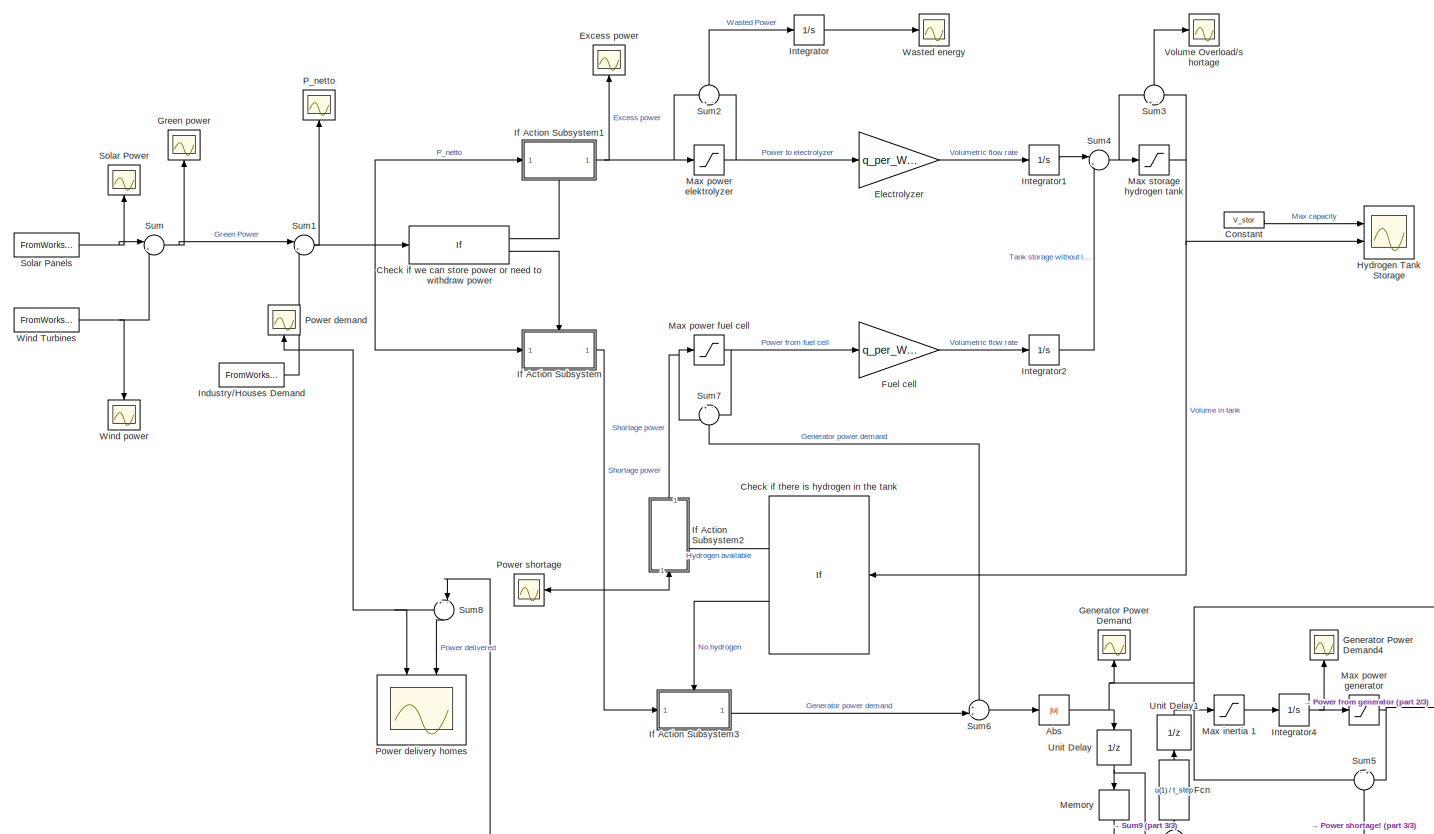
[diagram: root canvas - part 1/3, most of the canvas]
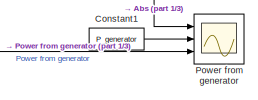
[diagram: root canvas - part 2/3, bottom right region]
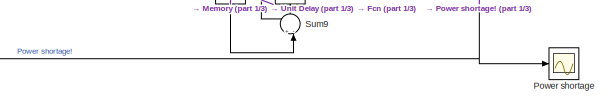
[diagram: root canvas - part 3/3, bottom right region]
MODEL slx_9084484f631f
KIND model
CONFIG AbsTol = auto
CONFIG EnableMultiTasking = off
CONFIG FixedStep = auto
CONFIG MaxStep = auto
CONFIG MinStep = auto
CONFIG RelTol = 1e-3
CONFIG SampleTimeConstraint = Unconstrained
CONFIG Solver = VariableStepAuto
CONFIG SolverName = VariableStepAuto
CONFIG StartTime = 0.0
CONFIG StopTime = T_sim
BLOCK [Abs] Abs
  SaturateOnIntegerOverflow = off
BLOCK [If] Check if there is hydrogen in the tank 
  Ports = [1, 2]
BLOCK [If] Check if we can store power or need to withdraw power
  Ports = [1, 2]
BLOCK [Constant] Constant
  Value = V_stor
BLOCK [Constant] Constant1
  Value = P_generator
BLOCK [Gain] Electrolyzer
  Gain = q_per_Watt
  OutDataTypeStr = Inherit: Inherit via internal rule
  ParamDataTypeStr = Inherit: Inherit via internal rule
  SaturateOnIntegerOverflow = off
BLOCK [Scope] Excess power
  Floating = off
  NumInputPorts = 1
  Ports = [1]
  ScopeSpecificationString = Simulink.scopes.TimeScopeBlockCfg('CurrentConfiguration', extmgr.ConfigurationSet(extmgr.Configuration('Core','General UI',true),extmgr.Configuration('Core','Source UI',true),extmgr.Configuration('Sources','WiredSimulink',true,'DataLoggingVariableName','ScopeData1'),extmgr.Configuration('Visuals','Time Domain',true,'SerializedDisplays',{struct('MinYLimReal','-0.3125','MaxYLimReal','2.8125','YLabel...<+1398ch>
BLOCK [Fcn] Fcn
  Expr = u(1) / t_step
BLOCK [Gain] Fuel cell
  Gain = q_per_Watt
  OutDataTypeStr = Inherit: Inherit via internal rule
  ParamDataTypeStr = Inherit: Inherit via internal rule
  SaturateOnIntegerOverflow = off
BLOCK [Scope] Generator Power Demand
  Floating = off
  NumInputPorts = 1
  Ports = [1]
  ScopeSpecificationString = Simulink.scopes.TimeScopeBlockCfg('CurrentConfiguration', extmgr.ConfigurationSet(extmgr.Configuration('Core','General UI',true),extmgr.Configuration('Core','Source UI',true),extmgr.Configuration('Sources','WiredSimulink',true,'DataLoggingVariableName','ScopeData7'),extmgr.Configuration('Visuals','Time Domain',true,'SerializedDisplays',{struct('MinYLimReal','-0.31958','MaxYLimReal','2.87677','YLab...<+1393ch>
BLOCK [Scope] Generator Power Demand4
  Floating = off
  NumInputPorts = 1
  Ports = [1]
  ScopeSpecificationString = Simulink.scopes.TimeScopeBlockCfg('CurrentConfiguration', extmgr.ConfigurationSet(extmgr.Configuration('Core','General UI',true),extmgr.Configuration('Core','Source UI',true),extmgr.Configuration('Sources','WiredSimulink',true,'DataLoggingVariableName','ScopeData6'),extmgr.Configuration('Visuals','Time Domain',true,'SerializedDisplays',{struct('MinYLimReal','-3.65243','MaxYLimReal','2.67404','YLab...<+1451ch>
BLOCK [Scope] Green power
  Floating = off
  NumInputPorts = 1
  Ports = [1]
  ScopeSpecificationString = Simulink.scopes.TimeScopeBlockCfg('CurrentConfiguration', extmgr.ConfigurationSet(extmgr.Configuration('Core','General UI',true),extmgr.Configuration('Core','Source UI',true),extmgr.Configuration('Sources','WiredSimulink',true,'DataLoggingVariableName','ScopeData6'),extmgr.Configuration('Visuals','Time Domain',true,'SerializedDisplays',{struct('MinYLimReal','2.54492','MaxYLimReal','6.93945','YLabe...<+1368ch>
BLOCK [Scope] Hydrogen Tank Storage
  Floating = off
  NumInputPorts = 2
  Ports = [2]
  ScopeSpecificationString = Simulink.scopes.TimeScopeBlockCfg('CurrentConfiguration', extmgr.ConfigurationSet(extmgr.Configuration('Core','General UI',true),extmgr.Configuration('Core','Source UI',true),extmgr.Configuration('Sources','WiredSimulink',true,'DataLoggingVariableName','ScopeData1'),extmgr.Configuration('Visuals','Time Domain',true,'SerializedDisplays',{struct('MinYLimReal','-12.5','MaxYLimReal','112.5','YLabelRea...<+1374ch>
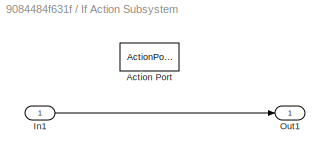
BLOCK [SubSystem] If Action Subsystem
  Ports = [1, 1, 0, 0, 0, 0, 0, 1]
  RequestExecContextInheritance = off
  TreatAsAtomicUnit = on
BLOCK [ActionPort] If Action Subsystem/Action Port
  ActionType = else
BLOCK [Inport] If Action Subsystem/In1
  IconDisplay = Port number
BLOCK [Outport] If Action Subsystem/Out1
  IconDisplay = Port number
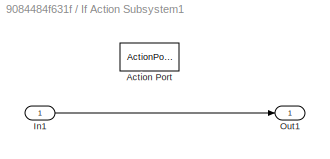
BLOCK [SubSystem] If Action Subsystem1
  Ports = [1, 1, 0, 0, 0, 0, 0, 1]
  RequestExecContextInheritance = off
  TreatAsAtomicUnit = on
BLOCK [ActionPort] If Action Subsystem1/Action Port
  ActionType = then
BLOCK [Inport] If Action Subsystem1/In1
  IconDisplay = Port number
BLOCK [Outport] If Action Subsystem1/Out1
  IconDisplay = Port number
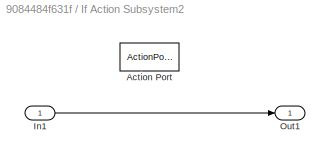
BLOCK [SubSystem] If Action Subsystem2
  Ports = [1, 1, 0, 0, 0, 0, 0, 1]
  RequestExecContextInheritance = off
  TreatAsAtomicUnit = on
BLOCK [ActionPort] If Action Subsystem2/Action Port
  ActionType = then
BLOCK [Inport] If Action Subsystem2/In1
  IconDisplay = Port number
BLOCK [Outport] If Action Subsystem2/Out1
  IconDisplay = Port number
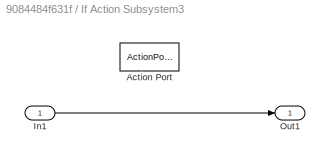
BLOCK [SubSystem] If Action Subsystem3
  Ports = [1, 1, 0, 0, 0, 0, 0, 1]
  RequestExecContextInheritance = off
  TreatAsAtomicUnit = on
BLOCK [ActionPort] If Action Subsystem3/Action Port
  ActionType = else
BLOCK [Inport] If Action Subsystem3/In1
  IconDisplay = Port number
BLOCK [Outport] If Action Subsystem3/Out1
  IconDisplay = Port number
BLOCK [FromWorkspace] Industry//Houses Demand
  Interpolate = off
  OutputAfterFinalValue = Setting to zero
  SampleTime = t_step
  VariableName = house
  ZeroCross = on
BLOCK [Integrator] Integrator
  Ports = [1, 1]
BLOCK [Integrator] Integrator1
  Ports = [1, 1]
BLOCK [Integrator] Integrator2
  Ports = [1, 1]
BLOCK [Integrator] Integrator4
  InitialCondition = 0.5
  Ports = [1, 1]
BLOCK [Saturate] Max inertia 1
  InputPortMap = u0
  LowerLimit = -1 * P_gen_inertia
  Ports = [1, 1]
  UpperLimit = P_gen_inertia
BLOCK [Saturate] Max power elektrolyzer
  InputPortMap = u0
  LowerLimit = 0
  Ports = [1, 1]
  UpperLimit = P_elektrolyzer
BLOCK [Saturate] Max power fuel cell
  InputPortMap = u0
  LowerLimit = -1 * P_fuelcell
  Ports = [1, 1]
  UpperLimit = 0
BLOCK [Saturate] Max power generator
  InputPortMap = u0
  LowerLimit = 0
  Ports = [1, 1]
  UpperLimit = P_generator
BLOCK [Saturate] Max storage hydrogen tank
  InputPortMap = u0
  LowerLimit = 0
  Ports = [1, 1]
  UpperLimit = V_stor
BLOCK [Memory] Memory
  InitialCondition = 0.5
BLOCK [Scope] P_netto
  Floating = off
  NumInputPorts = 1
  Ports = [1]
  ScopeSpecificationString = Simulink.scopes.TimeScopeBlockCfg('CurrentConfiguration', extmgr.ConfigurationSet(extmgr.Configuration('Core','General UI',true),extmgr.Configuration('Core','Source UI',true),extmgr.Configuration('Sources','WiredSimulink',true,'DataLoggingVariableName','ScopeData8'),extmgr.Configuration('Visuals','Time Domain',true,'SerializedDisplays',{struct('MinYLimReal','-4.53921','MaxYLimReal','3.28213','YLab...<+1366ch>
BLOCK [Scope] Power delivery homes
  Floating = off
  NumInputPorts = 2
  Ports = [2]
  ScopeSpecificationString = Simulink.scopes.TimeScopeBlockCfg('CurrentConfiguration', extmgr.ConfigurationSet(extmgr.Configuration('Core','General UI',true),extmgr.Configuration('Core','Source UI',true),extmgr.Configuration('Sources','WiredSimulink',true,'DataLoggingVariableName','ScopeData5'),extmgr.Configuration('Visuals','Time Domain',true,'SerializedDisplays',{struct('MinYLimReal','1.375','MaxYLimReal','7.625','YLabelRea...<+1382ch>
BLOCK [Scope] Power demand
  Floating = off
  NumInputPorts = 1
  Ports = [1]
  ScopeSpecificationString = Simulink.scopes.TimeScopeBlockCfg('CurrentConfiguration', extmgr.ConfigurationSet(extmgr.Configuration('Core','General UI',true),extmgr.Configuration('Core','Source UI',true),extmgr.Configuration('Sources','WiredSimulink',true,'DataLoggingVariableName','ScopeData1'),extmgr.Configuration('Visuals','Time Domain',true,'SerializedDisplays',{struct('MinYLimReal','1.375','MaxYLimReal','7.625','YLabelRea...<+1389ch>
BLOCK [Scope] Power from generator
  Floating = off
  NumInputPorts = 3
  Ports = [3]
  ScopeSpecificationString = Simulink.scopes.TimeScopeBlockCfg('CurrentConfiguration', extmgr.ConfigurationSet(extmgr.Configuration('Core','General UI',true),extmgr.Configuration('Core','Source UI',true),extmgr.Configuration('Sources','WiredSimulink',true,'DataLoggingVariableName','ScopeData3'),extmgr.Configuration('Visuals','Time Domain',true,'SerializedDisplays',{struct('MinYLimReal','-0.87494','MaxYLimReal','7.87499','YLab...<+1397ch>
BLOCK [Scope] Power shortage
  Floating = off
  NumInputPorts = 1
  Ports = [1]
  ScopeSpecificationString = Simulink.scopes.TimeScopeBlockCfg('CurrentConfiguration', extmgr.ConfigurationSet(extmgr.Configuration('Core','General UI',true),extmgr.Configuration('Core','Source UI',true),extmgr.Configuration('Sources','WiredSimulink',true,'DataLoggingVariableName','ScopeData2'),extmgr.Configuration('Visuals','Time Domain',true,'SerializedDisplays',{struct('MinYLimReal','-4.22671','MaxYLimReal','0.46963','YLab...<+1404ch>
BLOCK [Scope] Power shortage 
  Floating = off
  NumInputPorts = 1
  Ports = [1]
  ScopeSpecificationString = Simulink.scopes.TimeScopeBlockCfg('CurrentConfiguration', extmgr.ConfigurationSet(extmgr.Configuration('Core','General UI',true),extmgr.Configuration('Core','Source UI',true),extmgr.Configuration('Sources','WiredSimulink',true,'DataLoggingVariableName','ScopeData4'),extmgr.Configuration('Visuals','Time Domain',true,'SerializedDisplays',{struct('MinYLimReal','-1.34443','MaxYLimReal','0.23339','YLab...<+1374ch>
BLOCK [FromWorkspace] Solar Panels
  Interpolate = off
  OutputAfterFinalValue = Setting to zero
  SampleTime = t_step
  VariableName = solar
  ZeroCross = on
BLOCK [Scope] Solar Power
  Floating = off
  NumInputPorts = 1
  Ports = [1]
  ScopeSpecificationString = Simulink.scopes.TimeScopeBlockCfg('CurrentConfiguration', extmgr.ConfigurationSet(extmgr.Configuration('Core','General UI',true),extmgr.Configuration('Core','Source UI',true),extmgr.Configuration('Sources','WiredSimulink',true,'DataLoggingVariableName','ScopeData2'),extmgr.Configuration('Visuals','Time Domain',true,'SerializedDisplays',{struct('MinYLimReal','-0.5','MaxYLimReal','4.5','YLabelReal',...<+1373ch>
BLOCK [Sum] Sum
  IconShape = round
  InputSameDT = off
  Inputs = |++
  OutDataTypeStr = Inherit: Inherit via internal rule
  Ports = [2, 1]
  SaturateOnIntegerOverflow = off
BLOCK [Sum] Sum1
  IconShape = round
  InputSameDT = off
  Inputs = |+-
  OutDataTypeStr = Inherit: Inherit via internal rule
  Ports = [2, 1]
  SaturateOnIntegerOverflow = off
BLOCK [Sum] Sum2
  IconShape = round
  InputSameDT = off
  Inputs = +-
  OutDataTypeStr = Inherit: Inherit via internal rule
  Ports = [2, 1]
  SaturateOnIntegerOverflow = off
BLOCK [Sum] Sum3
  IconShape = round
  InputSameDT = off
  Inputs = +-
  OutDataTypeStr = Inherit: Inherit via internal rule
  Ports = [2, 1]
  SaturateOnIntegerOverflow = off
BLOCK [Sum] Sum4
  IconShape = round
  InputSameDT = off
  Inputs = |++
  OutDataTypeStr = Inherit: Inherit via internal rule
  Ports = [2, 1]
  SaturateOnIntegerOverflow = off
BLOCK [Sum] Sum5
  IconShape = round
  InputSameDT = off
  Inputs = -+
  OutDataTypeStr = Inherit: Inherit via internal rule
  Ports = [2, 1]
  SaturateOnIntegerOverflow = off
BLOCK [Sum] Sum6
  IconShape = round
  InputSameDT = off
  Inputs = ++|
  OutDataTypeStr = Inherit: Inherit via internal rule
  Ports = [2, 1]
  SaturateOnIntegerOverflow = off
BLOCK [Sum] Sum7
  IconShape = round
  InputSameDT = off
  Inputs = +-
  OutDataTypeStr = Inherit: Inherit via internal rule
  Ports = [2, 1]
  SaturateOnIntegerOverflow = off
BLOCK [Sum] Sum8
  IconShape = round
  InputSameDT = off
  Inputs = +-|
  OutDataTypeStr = Inherit: Inherit via internal rule
  Ports = [2, 1]
  SaturateOnIntegerOverflow = off
BLOCK [Sum] Sum9
  IconShape = round
  InputSameDT = off
  Inputs = +-|
  OutDataTypeStr = Inherit: Inherit via internal rule
  Ports = [2, 1]
  SaturateOnIntegerOverflow = off
BLOCK [UnitDelay] Unit Delay
  InitialCondition = 0.5
  InputProcessing = Elements as channels (sample based)
  SampleTime = t_step
BLOCK [UnitDelay] Unit Delay1
  InputProcessing = Elements as channels (sample based)
  SampleTime = t_step
BLOCK [Scope] Volume Overload//shortage
  Floating = off
  NumInputPorts = 1
  Ports = [1]
  ScopeSpecificationString = Simulink.scopes.TimeScopeBlockCfg('CurrentConfiguration', extmgr.ConfigurationSet(extmgr.Configuration('Core','General UI',true),extmgr.Configuration('Core','Source UI',true),extmgr.Configuration('Sources','WiredSimulink',true,'DataLoggingVariableName','ScopeData2'),extmgr.Configuration('Visuals','Time Domain',true,'SerializedDisplays',{struct('MinYLimReal','-1.00000','MaxYLimReal','1.00000','YLab...<+1363ch>
BLOCK [Scope] Wasted energy
  Floating = off
  NumInputPorts = 1
  Ports = [1]
  ScopeSpecificationString = Simulink.scopes.TimeScopeBlockCfg('CurrentConfiguration', extmgr.ConfigurationSet(extmgr.Configuration('Core','General UI',true),extmgr.Configuration('Core','Source UI',true),extmgr.Configuration('Sources','WiredSimulink',true),extmgr.Configuration('Visuals','Time Domain',true,'SerializedDisplays',{struct('MinYLimReal','-1.00000','MaxYLimReal','1.00000','YLabelReal','','MinYLimMag','0.00000','MaxY...<+1330ch>
BLOCK [FromWorkspace] Wind Turbines
  Interpolate = off
  OutputAfterFinalValue = Setting to zero
  SampleTime = t_step
  VariableName = wind
  ZeroCross = on
BLOCK [Scope] Wind power
  Floating = off
  NumInputPorts = 1
  Ports = [1]
  ScopeSpecificationString = Simulink.scopes.TimeScopeBlockCfg('CurrentConfiguration', extmgr.ConfigurationSet(extmgr.Configuration('Core','General UI',true),extmgr.Configuration('Core','Source UI',true),extmgr.Configuration('Sources','WiredSimulink',true,'DataLoggingVariableName','ScopeData1'),extmgr.Configuration('Visuals','Time Domain',true,'SerializedDisplays',{struct('MinYLimReal','0','MaxYLimReal','3.625','YLabelReal','...<+1508ch>
NET Abs:1 -> Generator Power Demand:1, Power from generator:1, Sum5:1, Unit Delay:1
LINE Check if there is hydrogen in the tank :1 -> If Action Subsystem2:ifaction
LINE Check if there is hydrogen in the tank :2 -> If Action Subsystem3:ifaction
LINE Check if we can store power or need to withdraw power:1 -> If Action Subsystem1:ifaction
LINE Check if we can store power or need to withdraw power:2 -> If Action Subsystem:ifaction
LINE Constant1:1 -> Power from generator:2
LINE Constant:1 -> Hydrogen Tank Storage:1
LINE Electrolyzer:1 -> Integrator1:1
LINE Fcn:1 -> Unit Delay1:1
LINE Fuel cell:1 -> Integrator2:1
LINE If Action Subsystem/In1:1 -> If Action Subsystem/Out1:1
LINE If Action Subsystem1/In1:1 -> If Action Subsystem1/Out1:1
NET If Action Subsystem1:1 -> Excess power:1, Max power elektrolyzer:1, Sum2:1
LINE If Action Subsystem2/In1:1 -> If Action Subsystem2/Out1:1
NET If Action Subsystem2:1 -> Max power fuel cell:1, Sum7:1
LINE If Action Subsystem3/In1:1 -> If Action Subsystem3/Out1:1
LINE If Action Subsystem3:1 -> Sum6:2
NET If Action Subsystem:1 -> If Action Subsystem2:1, If Action Subsystem3:1, Power shortage:1
NET Industry//Houses Demand:1 -> Power delivery homes:1, Power demand:1, Sum1:2, Sum8:1
LINE Integrator1:1 -> Sum4:1
LINE Integrator2:1 -> Sum4:2
NET Integrator4:1 -> Generator Power Demand4:1, Max power generator:1
LINE Integrator:1 -> Wasted energy:1
LINE Max inertia 1:1 -> Integrator4:1
NET Max power elektrolyzer:1 -> Electrolyzer:1, Sum2:2
NET Max power fuel cell:1 -> Fuel cell:1, Sum7:2
NET Max power generator:1 -> Power from generator:3, Sum5:2
NET Max storage hydrogen tank:1 -> Check if there is hydrogen in the tank :1, Hydrogen Tank Storage:2, Sum3:2
LINE Memory:1 -> Sum9:2
NET Solar Panels:1 -> Solar Power:1, Sum:1
NET Sum1:1 -> Check if we can store power or need to withdraw power:1, If Action Subsystem1:1, If Action Subsystem:1, P_netto:1
LINE Sum2:1 -> Integrator:1
LINE Sum3:1 -> Volume Overload//shortage:1
NET Sum4:1 -> Max storage hydrogen tank:1, Sum3:1
NET Sum5:1 -> Power shortage :1, Sum8:2
LINE Sum6:1 -> Abs:1
LINE Sum7:1 -> Sum6:1
LINE Sum8:1 -> Power delivery homes:2
LINE Sum9:1 -> Fcn:1
NET Sum:1 -> Green power:1, Sum1:1
LINE Unit Delay1:1 -> Max inertia 1:1
NET Unit Delay:1 -> Memory:1, Sum9:1
NET Wind Turbines:1 -> Sum:2, Wind power:1
note: NET lines group one-source signal fan-out (src -> all destinations, sorted); 1:1 wires keep LINE
